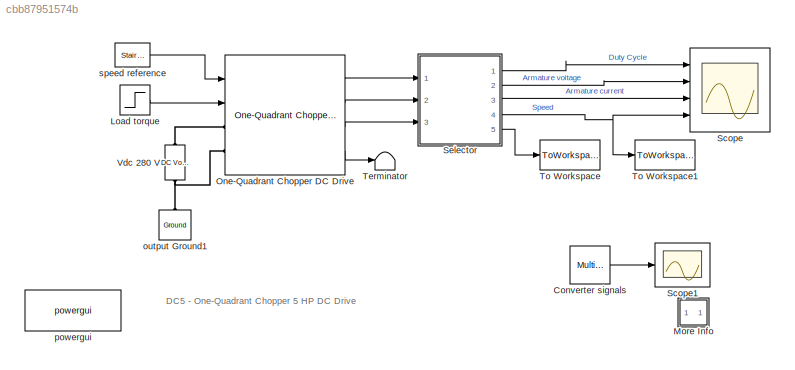
MODEL slx_cbb87951574b
KIND model
CONFIG AbsTol = auto
CONFIG EnableMultiTasking = on
CONFIG FixedStep = auto
CONFIG MaxStep = auto
CONFIG MinStep = auto
CONFIG PreLoadFcn = Ts=1e-6;
CONFIG RelTol = 1e-3
CONFIG SampleTimeConstraint = Unconstrained
CONFIG Solver = FixedStepDiscrete
CONFIG SolverName = FixedStepDiscrete
CONFIG StartTime = 0.0
CONFIG StopTime = 4
BLOCK [Reference] Converter signals  REF=powerlib/Measurements/Multimeter
  Ports = [0, 1]
  SourceBlock = powerlib/Measurements/Multimeter
  SourceProductBaseCode = PS
  SourceProductName = Simscape Electrical
  SourceType = MultimeterPSB
BLOCK [Step] Load torque
  After = 20
  Before = 15
  SampleTime = 0
  Time = 2.5
BLOCK [SubSystem] More Info
  OpenFcn = showdemo(bdroot(gcb))
  Ports = []
  RequestExecContextInheritance = off
BLOCK [Reference] One-Quadrant Chopper DC Drive  REF=electricdrivelib/DC drives/One-Quadrant
Chopper DC Drive
  Ports = [2, 4, 0, 0, 0, 2]
  SourceBlock = electricdrivelib/DC drives/One-Quadrant\nChopper DC Drive
  SourceProductBaseCode = PS
  SourceProductName = Simscape Electrical
  SourceType = One-Quadrant Chopper DC Drive
BLOCK [Scope] Scope
  Floating = off
  NumInputPorts = 4
  Ports = [4]
  ScopeSpecificationString = Simulink.scopes.TimeScopeBlockCfg('CurrentConfiguration', extmgr.ConfigurationSet(extmgr.Configuration('Core','General UI',true),extmgr.Configuration('Core','Source UI',true),extmgr.Configuration('Sources','WiredSimulink',true,'DataLoggingSaveFormat','Array','DataLoggingDecimation','1','DataLoggingDecimateData',true),extmgr.Configuration('Visuals','Time Domain',true,'SerializedDisplays',{struct('M...<+3680ch>
BLOCK [Scope] Scope1
  Floating = off
  NumInputPorts = 1
  Ports = [1]
  ScopeSpecificationString = C++SS(StrPVP('Location','[188, 365, 512, 604]'),StrPVP('Open','off'),MxPVP('AxesTitles',53,'struct(''axes1'',''%<SignalLabel>'')'),StrPVP('ShowLegends','off'),StrPVP('LimitDataPoints','off'),StrPVP('DataFormat','Array'),StrPVP('Decimation','1'),StrPVP('BlockParamSampleInput','off'))
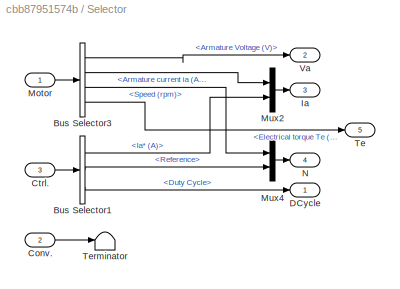
BLOCK [SubSystem] Selector
  Ports = [3, 5]
  RequestExecContextInheritance = off
BLOCK [BusSelector] Selector/Bus Selector1
  OutputAsBus = off
  OutputSignals = Ia* (A),Reference,Duty Cycle
  Ports = [1, 3]
BLOCK [BusSelector] Selector/Bus Selector3
  OutputAsBus = off
  OutputSignals = Armature Voltage (V),Armature current ia (A),Speed (rpm),Electrical torque Te (n m)
  Ports = [1, 4]
BLOCK [Inport] Selector/Conv.
  IconDisplay = Port number
  Port = 2
BLOCK [Inport] Selector/Ctrl.
  IconDisplay = Port number
  Port = 3
BLOCK [Outport] Selector/DCycle
  IconDisplay = Port number
BLOCK [Outport] Selector/Ia
  IconDisplay = Port number
  Port = 3
BLOCK [Inport] Selector/Motor
  IconDisplay = Port number
BLOCK [Mux] Selector/Mux2
  DisplayOption = bar
  Inputs = 2
  Ports = [2, 1]
BLOCK [Mux] Selector/Mux4
  DisplayOption = bar
  Inputs = 2
  Ports = [2, 1]
BLOCK [Outport] Selector/N
  IconDisplay = Port number
  Port = 4
BLOCK [Outport] Selector/Te
  IconDisplay = Port number
  Port = 5
BLOCK [Terminator] Selector/Terminator
BLOCK [Outport] Selector/Va
  IconDisplay = Port number
  Port = 2
BLOCK [Terminator] Terminator
BLOCK [ToWorkspace] To Workspace
  FixptAsFi = on
  MaxDataPoints = inf
  Ports = [1]
  SampleTime = -1
  Save2DSignal = 2-D array (concatenate along first dimension)
  VariableName = Te
BLOCK [ToWorkspace] To Workspace1
  FixptAsFi = on
  MaxDataPoints = inf
  Ports = [1]
  SampleTime = -1
  Save2DSignal = 2-D array (concatenate along first dimension)
  VariableName = w
BLOCK [Reference] Vdc 280 V   REF=powerlib/Electrical
Sources/DC Voltage Source
  AttributesFormatString = \n
  Description = source block
  Ports = [0, 0, 0, 0, 0, 1, 1]
  SourceBlock = powerlib/Electrical\nSources/DC Voltage Source
  SourceProductBaseCode = PS
  SourceProductName = Simscape Electrical
  SourceType = DC Voltage Source
BLOCK [Reference] output Ground1  REF=powerlib/Elements/Ground
  AttributesFormatString = \n
  Ports = [0, 0, 0, 0, 0, 1]
  SourceBlock = powerlib/Elements/Ground
  SourceProductBaseCode = PS
  SourceProductName = Simscape Electrical
  SourceType = Ground
BLOCK [Reference] powergui  REF=powerlib/powergui
  Ports = []
  Priority = 2
  SourceBlock = powerlib/powergui
  SourceProductBaseCode = PS
  SourceProductName = Simscape Electrical
  SourceType = PSB option menu block
BLOCK [Reference] speed reference  REF=powerlib_meascontrol/Pulse & Signal
Generators/Stair
Generator
  Ports = [0, 1]
  SourceBlock = powerlib_meascontrol/Pulse & Signal\nGenerators/Stair\nGenerator
  SourceProductBaseCode = PS
  SourceProductName = Simscape Electrical
  SourceType = Stair Generator
ANNOTATION (root): DC5 - One-Quadrant Chopper 5 HP DC Drive
LINE Converter signals:1 -> Scope1:1
LINE Load torque:1 -> One-Quadrant Chopper DC Drive:2
LINE One-Quadrant Chopper DC Drive:1 -> Selector:1
LINE One-Quadrant Chopper DC Drive:2 -> Selector:2
LINE One-Quadrant Chopper DC Drive:3 -> Selector:3
LINE One-Quadrant Chopper DC Drive:4 -> Terminator:1
LINE Selector/Bus Selector1:1 -> Selector/Mux2:2
LINE Selector/Bus Selector1:2 -> Selector/Mux4:2
LINE Selector/Bus Selector1:3 -> Selector/DCycle:1
LINE Selector/Bus Selector3:1 -> Selector/Va:1
LINE Selector/Bus Selector3:2 -> Selector/Mux2:1
LINE Selector/Bus Selector3:3 -> Selector/Mux4:1
LINE Selector/Bus Selector3:4 -> Selector/Te:1
LINE Selector/Conv.:1 -> Selector/Terminator:1
LINE Selector/Ctrl.:1 -> Selector/Bus Selector1:1
LINE Selector/Motor:1 -> Selector/Bus Selector3:1
LINE Selector/Mux2:1 -> Selector/Ia:1
LINE Selector/Mux4:1 -> Selector/N:1
LINE Selector:1 -> Scope:1
LINE Selector:2 -> Scope:2
LINE Selector:3 -> Scope:3
NET Selector:4 -> Scope:4, To Workspace1:1
LINE Selector:5 -> To Workspace:1
LINE speed reference:1 -> One-Quadrant Chopper DC Drive:1
PLINE One-Quadrant Chopper DC Drive:LConn1 -- Vdc 280 V :RConn1
PNET net1: One-Quadrant Chopper DC Drive:LConn2 -- Vdc 280 V :LConn1 -- output Ground1:LConn1
note: NET lines group one-source signal fan-out (src -> all destinations, sorted); 1:1 wires keep LINE; PNET lines group multi-terminal physical nets as a canonical sorted terminal list (undirected conserving connections); 2-terminal nets keep the pairwise PLINE form
